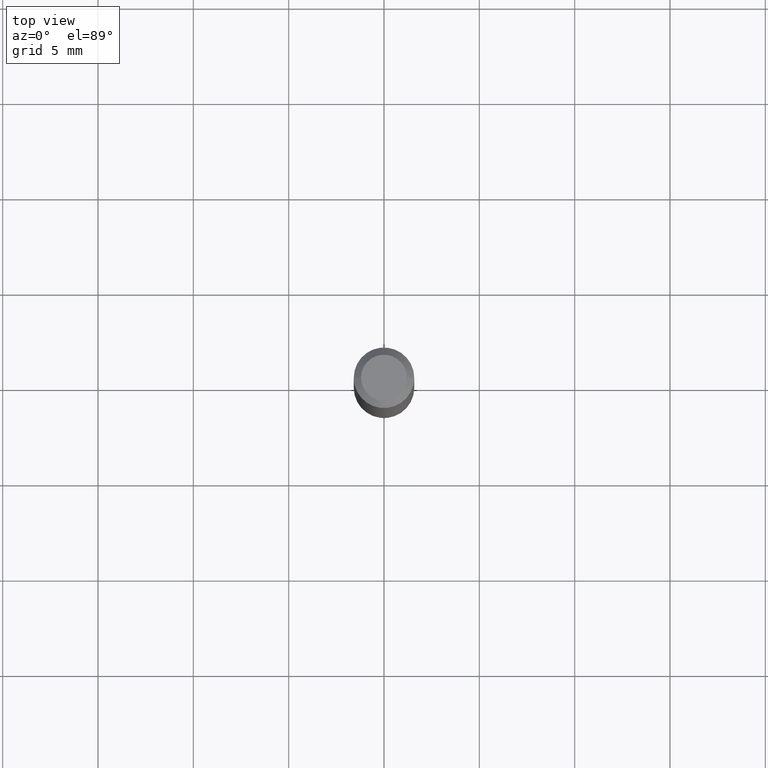
[diagram: clean part render]
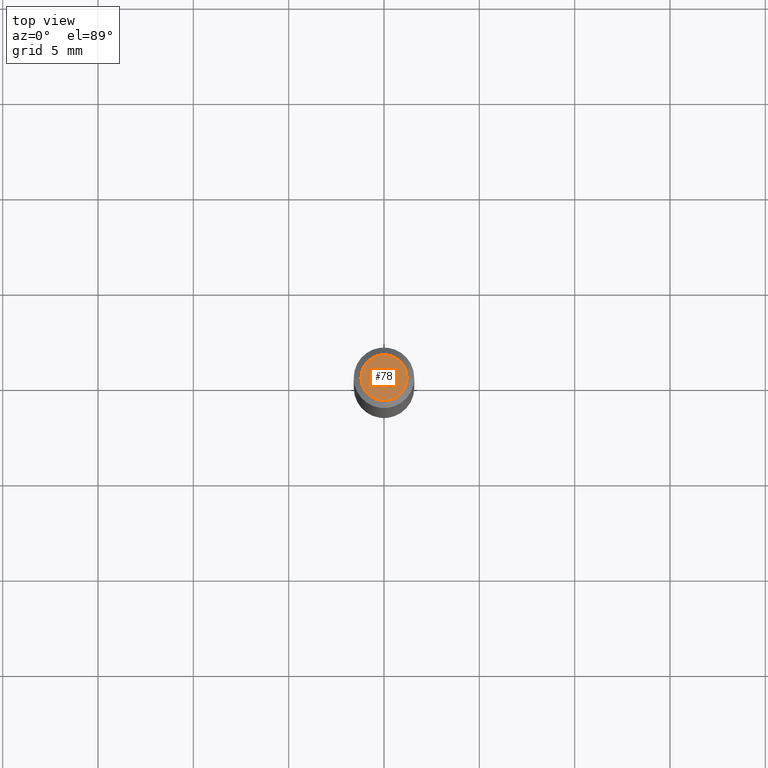
[diagram: same view with one face highlighted and labeled with its STEP entity id]
A machine part, top view. The second image highlights one B-rep face of the part: STEP entity #78.
In plain terms, the highlighted planar face has unit normal (0, -0, -1).
Its self-contained STEP definition (entity closure, byte-faithful):
#2 = CARTESIAN_POINT ( 'NONE',  ( -0.04749999999999999362, 3.578768372314200645E-16, -5.475136966724983420E-16 ) ) ;
#15 = CARTESIAN_POINT ( 'NONE',  ( 1.338927666171699620E-44, -1.911633854693045944E-30, -5.475136966724958768E-16 ) ) ;
#17 = EDGE_CURVE ( 'NONE', #387, #350, #373, .T. ) ;
#19 = CARTESIAN_POINT ( 'NONE',  ( 0.04749999999999999362, -4.035134999187587991E-16, -5.475136966724933130E-16 ) ) ;
#20 = PLANE ( 'NONE',  #197 ) ;
#65 = ORIENTED_EDGE ( 'NONE', *, *, #396, .T. ) ;
#78 = ADVANCED_FACE ( 'NONE', ( #118 ), #20, .F. ) ;
#95 = AXIS2_PLACEMENT_3D ( 'NONE', #15, #162, #200 ) ;
#118 = FACE_OUTER_BOUND ( 'NONE', #362, .T. ) ;
#123 = DIRECTION ( 'NONE',  ( -2.445468806185136597E-29, 3.491481338843145583E-15, 1.000000000000000000 ) ) ;
#128 = ORIENTED_EDGE ( 'NONE', *, *, #17, .T. ) ;
#162 = DIRECTION ( 'NONE',  ( -2.445468806185136597E-29, 3.491481338843145583E-15, 1.000000000000000000 ) ) ;
#197 = AXIS2_PLACEMENT_3D ( 'NONE', #451, #255, #252 ) ;
#200 = DIRECTION ( 'NONE',  ( 1.000000000000000000, -6.982962677686267499E-15, 4.852736867747366768E-29 ) ) ;
#251 = AXIS2_PLACEMENT_3D ( 'NONE', #323, #123, #447 ) ;
#252 = DIRECTION ( 'NONE',  ( -1.000000000000000000, 6.982962677686265922E-15, -4.876176775795935793E-29 ) ) ;
#255 = DIRECTION ( 'NONE',  ( 2.438088387897960049E-29, -3.491481338843145188E-15, -1.000000000000000000 ) ) ;
#292 = CIRCLE ( 'NONE', #251, 0.04749999999999999362 ) ;
#323 = CARTESIAN_POINT ( 'NONE',  ( 1.338927666171699620E-44, -1.911633854693045944E-30, -5.475136966724958768E-16 ) ) ;
#350 = VERTEX_POINT ( 'NONE', #2 ) ;
#362 = EDGE_LOOP ( 'NONE', ( #65, #128 ) ) ;
#373 = CIRCLE ( 'NONE', #95, 0.04749999999999999362 ) ;
#387 = VERTEX_POINT ( 'NONE', #19 ) ;
#396 = EDGE_CURVE ( 'NONE', #350, #387, #292, .T. ) ;
#447 = DIRECTION ( 'NONE',  ( 1.000000000000000000, -6.982962677686267499E-15, 4.852736867747366768E-29 ) ) ;
#451 = CARTESIAN_POINT ( 'NONE',  ( 3.316907271900976096E-16, 0.04749999999999999362, -4.396022119312973841E-16 ) ) ;